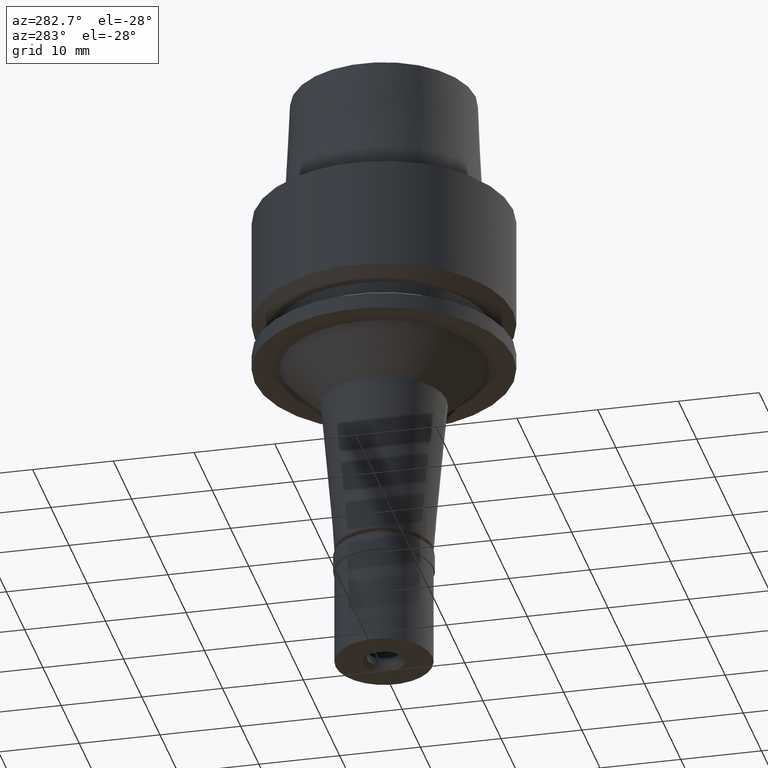
[diagram: clean part render]
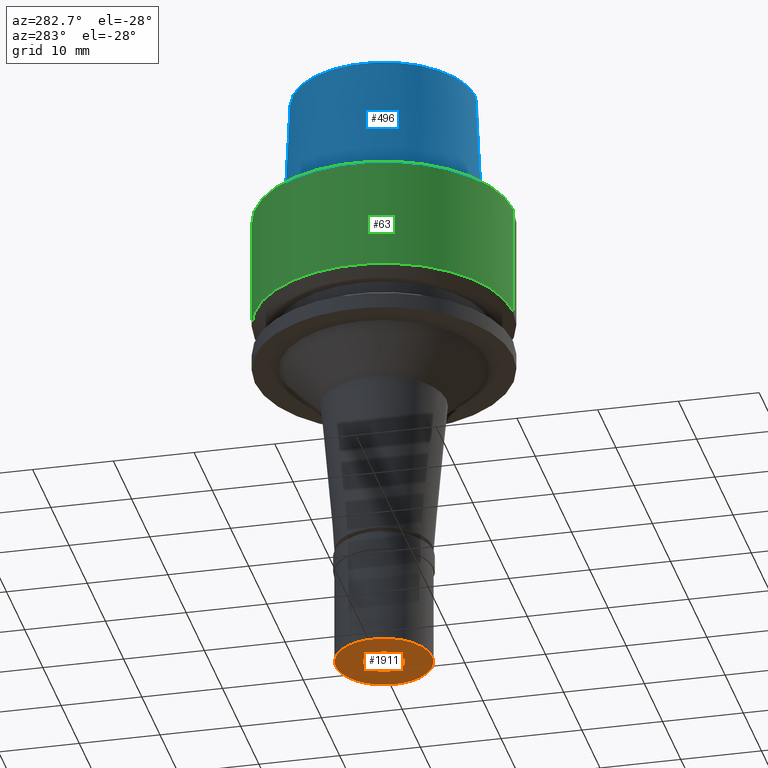
[diagram: same view with three faces highlighted in distinct colors, each labeled with its STEP entity id]
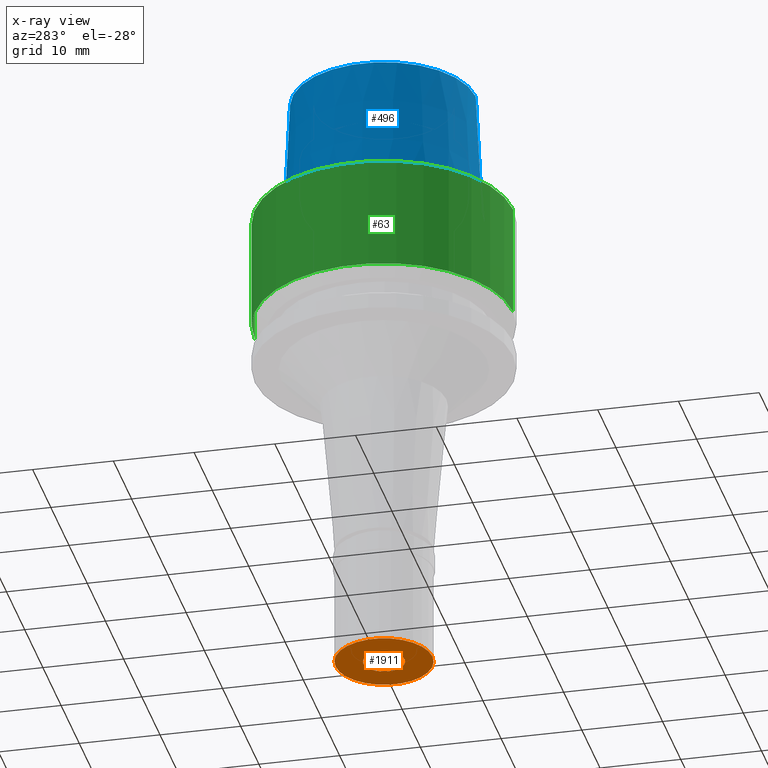
[diagram: x-ray of the same camera — body ghosted, the three highlighted faces saturated]
A machine part, auxiliary view with three faces highlighted in distinct colors.
The next image is the same camera in x-ray (body ghosted, the three faces saturated) — at least one of them is partly hidden behind the body in this view.
Their STEP definitions:

[orange] entity #1911 — the highlighted planar face has unit normal (0, 0, 1).
#25 = EDGE_CURVE ( 'NONE', #849, #1228, #1195, .T. ) ;
#37 = DIRECTION ( 'NONE',  ( 0.0000000000000000000, 0.0000000000000000000, -1.000000000000000000 ) ) ;
#49 = EDGE_CURVE ( 'NONE', #1881, #1268, #1945, .T. ) ;
#217 = EDGE_CURVE ( 'NONE', #1268, #1881, #2287, .T. ) ;
#439 = PLANE ( 'NONE',  #614 ) ;
#440 = DIRECTION ( 'NONE',  ( 0.0000000000000000000, 0.0000000000000000000, 1.000000000000000000 ) ) ;
#530 = DIRECTION ( 'NONE',  ( 0.0000000000000000000, 0.0000000000000000000, 1.000000000000000000 ) ) ;
#553 = ORIENTED_EDGE ( 'NONE', *, *, #25, .F. ) ;
#614 = AXIS2_PLACEMENT_3D ( 'NONE', #1480, #1010, #1241 ) ;
#705 = CARTESIAN_POINT ( 'NONE',  ( 0.0000000000000000000, 2.550000000000000266, -14.50000000000000000 ) ) ;
#762 = AXIS2_PLACEMENT_3D ( 'NONE', #1906, #440, #2129 ) ;
#833 = DIRECTION ( 'NONE',  ( 0.0000000000000000000, 0.0000000000000000000, -1.000000000000000000 ) ) ;
#849 = VERTEX_POINT ( 'NONE', #705 ) ;
#976 = CARTESIAN_POINT ( 'NONE',  ( 0.0000000000000000000, -2.550000000000000266, -14.50000000000000000 ) ) ;
#996 = ORIENTED_EDGE ( 'NONE', *, *, #49, .F. ) ;
#1010 = DIRECTION ( 'NONE',  ( 0.0000000000000000000, 0.0000000000000000000, 1.000000000000000000 ) ) ;
#1024 = EDGE_LOOP ( 'NONE', ( #1250, #996 ) ) ;
#1066 = AXIS2_PLACEMENT_3D ( 'NONE', #2317, #833, #2534 ) ;
#1195 = CIRCLE ( 'NONE', #1066, 2.550000000000000266 ) ;
#1228 = VERTEX_POINT ( 'NONE', #976 ) ;
#1241 = DIRECTION ( 'NONE',  ( 1.000000000000000000, 0.0000000000000000000, 0.0000000000000000000 ) ) ;
#1250 = ORIENTED_EDGE ( 'NONE', *, *, #217, .F. ) ;
#1267 = DIRECTION ( 'NONE',  ( 0.0000000000000000000, -1.000000000000000000, 0.0000000000000000000 ) ) ;
#1268 = VERTEX_POINT ( 'NONE', #1595 ) ;
#1438 = FACE_OUTER_BOUND ( 'NONE', #1024, .T. ) ;
#1480 = CARTESIAN_POINT ( 'NONE',  ( 0.0000000000000000000, 0.0000000000000000000, -14.50000000000000000 ) ) ;
#1595 = CARTESIAN_POINT ( 'NONE',  ( 0.0000000000000000000, 6.000000000000000000, -14.50000000000000000 ) ) ;
#1658 = CARTESIAN_POINT ( 'NONE',  ( 0.0000000000000000000, -6.000000000000000000, -14.50000000000000000 ) ) ;
#1881 = VERTEX_POINT ( 'NONE', #1658 ) ;
#1894 = EDGE_LOOP ( 'NONE', ( #553, #2467 ) ) ;
#1905 = FACE_BOUND ( 'NONE', #1894, .T. ) ;
#1906 = CARTESIAN_POINT ( 'NONE',  ( 0.0000000000000000000, 0.0000000000000000000, -14.50000000000000000 ) ) ;
#1911 = ADVANCED_FACE ( 'NONE', ( #1438, #1905 ), #439, .F. ) ;
#1945 = CIRCLE ( 'NONE', #762, 6.000000000000000000 ) ;
#2129 = DIRECTION ( 'NONE',  ( 0.0000000000000000000, -1.000000000000000000, 0.0000000000000000000 ) ) ;
#2146 = CARTESIAN_POINT ( 'NONE',  ( 0.0000000000000000000, 0.0000000000000000000, -14.50000000000000000 ) ) ;
#2191 = DIRECTION ( 'NONE',  ( 0.0000000000000000000, 1.000000000000000000, 0.0000000000000000000 ) ) ;
#2255 = CIRCLE ( 'NONE', #2606, 2.550000000000000266 ) ;
#2287 = CIRCLE ( 'NONE', #2589, 6.000000000000000000 ) ;
#2317 = CARTESIAN_POINT ( 'NONE',  ( 0.0000000000000000000, 0.0000000000000000000, -14.50000000000000000 ) ) ;
#2396 = CARTESIAN_POINT ( 'NONE',  ( 0.0000000000000000000, 0.0000000000000000000, -14.50000000000000000 ) ) ;
#2467 = ORIENTED_EDGE ( 'NONE', *, *, #2477, .F. ) ;
#2477 = EDGE_CURVE ( 'NONE', #1228, #849, #2255, .T. ) ;
#2534 = DIRECTION ( 'NONE',  ( 0.0000000000000000000, 1.000000000000000000, 0.0000000000000000000 ) ) ;
#2589 = AXIS2_PLACEMENT_3D ( 'NONE', #2396, #530, #2191 ) ;
#2606 = AXIS2_PLACEMENT_3D ( 'NONE', #2146, #37, #1267 ) ;

[blue] entity #496 — the highlighted conical surface has half-angle 2.862 deg.
#6 = ORIENTED_EDGE ( 'NONE', *, *, #516, .T. ) ;
#69 = CIRCLE ( 'NONE', #421, 11.36000117044999946 ) ;
#383 = CARTESIAN_POINT ( 'NONE',  ( 0.0000000000000000000, 12.15999970738999991, 3.907985046680999726E-14 ) ) ;
#421 = AXIS2_PLACEMENT_3D ( 'NONE', #968, #1809, #1157 ) ;
#447 = VERTEX_POINT ( 'NONE', #383 ) ;
#496 = ADVANCED_FACE ( 'NONE', ( #761 ), #547, .T. ) ;
#516 = EDGE_CURVE ( 'NONE', #1962, #1534, #69, .T. ) ;
#547 = CONICAL_SURFACE ( 'NONE', #2419, 11.76000043892000058, 0.04995830450907576964 ) ;
#580 = ORIENTED_EDGE ( 'NONE', *, *, #2649, .F. ) ;
#608 = CARTESIAN_POINT ( 'NONE',  ( 0.0000000000000000000, 11.36000117044000035, 16.00000000000000000 ) ) ;
#666 = EDGE_CURVE ( 'NONE', #1534, #447, #2280, .T. ) ;
#673 = VERTEX_POINT ( 'NONE', #1251 ) ;
#699 = DIRECTION ( 'NONE',  ( 0.0000000000000000000, -0.04993752584492938684, -0.9987523434327887362 ) ) ;
#761 = FACE_OUTER_BOUND ( 'NONE', #1278, .T. ) ;
#785 = DIRECTION ( 'NONE',  ( 0.0000000000000000000, 0.0000000000000000000, 1.000000000000000000 ) ) ;
#946 = ORIENTED_EDGE ( 'NONE', *, *, #666, .T. ) ;
#968 = CARTESIAN_POINT ( 'NONE',  ( 0.0000000000000000000, 0.0000000000000000000, 16.00000000000000000 ) ) ;
#1006 = CIRCLE ( 'NONE', #2266, 12.15999970738999991 ) ;
#1126 = VECTOR ( 'NONE', #699, 999.9999999999998863 ) ;
#1157 = DIRECTION ( 'NONE',  ( 0.0000000000000000000, -1.000000000000000000, 0.0000000000000000000 ) ) ;
#1251 = CARTESIAN_POINT ( 'NONE',  ( 0.0000000000000000000, -12.15999970738999991, 1.989519660127999812E-13 ) ) ;
#1278 = EDGE_LOOP ( 'NONE', ( #1973, #580, #6, #946 ) ) ;
#1452 = CARTESIAN_POINT ( 'NONE',  ( 0.0000000000000000000, -11.36000117044000035, 16.00000000000000000 ) ) ;
#1534 = VERTEX_POINT ( 'NONE', #1738 ) ;
#1695 = VECTOR ( 'NONE', #2501, 999.9999999999998863 ) ;
#1738 = CARTESIAN_POINT ( 'NONE',  ( 0.0000000000000000000, 11.36000117044000035, 16.00000000000000000 ) ) ;
#1793 = DIRECTION ( 'NONE',  ( 0.0000000000000000000, 0.0000000000000000000, -1.000000000000000000 ) ) ;
#1809 = DIRECTION ( 'NONE',  ( 0.0000000000000000000, 0.0000000000000000000, -1.000000000000000000 ) ) ;
#1962 = VERTEX_POINT ( 'NONE', #1452 ) ;
#1973 = ORIENTED_EDGE ( 'NONE', *, *, #2231, .T. ) ;
#2231 = EDGE_CURVE ( 'NONE', #447, #673, #1006, .T. ) ;
#2266 = AXIS2_PLACEMENT_3D ( 'NONE', #2640, #785, #2472 ) ;
#2280 = LINE ( 'NONE', #608, #1695 ) ;
#2360 = LINE ( 'NONE', #2576, #1126 ) ;
#2419 = AXIS2_PLACEMENT_3D ( 'NONE', #2437, #1793, #2668 ) ;
#2437 = CARTESIAN_POINT ( 'NONE',  ( 0.0000000000000000000, 0.0000000000000000000, 8.000000000000000000 ) ) ;
#2472 = DIRECTION ( 'NONE',  ( 0.0000000000000000000, 1.000000000000000000, 0.0000000000000000000 ) ) ;
#2501 = DIRECTION ( 'NONE',  ( 0.0000000000000000000, 0.04993752584492938684, -0.9987523434327887362 ) ) ;
#2576 = CARTESIAN_POINT ( 'NONE',  ( 0.0000000000000000000, -11.36000117044000035, 16.00000000000000000 ) ) ;
#2640 = CARTESIAN_POINT ( 'NONE',  ( 0.0000000000000000000, 0.0000000000000000000, 1.989519660127999812E-13 ) ) ;
#2649 = EDGE_CURVE ( 'NONE', #1962, #673, #2360, .T. ) ;
#2668 = DIRECTION ( 'NONE',  ( 0.0000000000000000000, -1.000000000000000000, 0.0000000000000000000 ) ) ;

[green] entity #63 — the highlighted cylindrical surface (partial cylindrical patch) has radius 16 mm, axis along (0, 0, -1).
#63 = ADVANCED_FACE ( 'NONE', ( #2107 ), #238, .T. ) ;
#70 = DIRECTION ( 'NONE',  ( 0.0000000000000000000, 6.772870976582999535E-14, -1.000000000000000000 ) ) ;
#223 = VERTEX_POINT ( 'NONE', #2178 ) ;
#238 = CYLINDRICAL_SURFACE ( 'NONE', #501, 16.00000000000000000 ) ;
#343 = DIRECTION ( 'NONE',  ( 0.0000000000000000000, 0.0000000000000000000, -1.000000000000000000 ) ) ;
#415 = VERTEX_POINT ( 'NONE', #954 ) ;
#428 = DIRECTION ( 'NONE',  ( 0.0000000000000000000, 0.0000000000000000000, -1.000000000000000000 ) ) ;
#501 = AXIS2_PLACEMENT_3D ( 'NONE', #2327, #428, #1465 ) ;
#597 = VECTOR ( 'NONE', #70, 1000.000000000000000 ) ;
#718 = DIRECTION ( 'NONE',  ( 0.0000000000000000000, 1.000000000000000000, 0.0000000000000000000 ) ) ;
#726 = EDGE_CURVE ( 'NONE', #415, #2356, #2099, .T. ) ;
#837 = ORIENTED_EDGE ( 'NONE', *, *, #2421, .T. ) ;
#914 = CIRCLE ( 'NONE', #2175, 16.00000000000000000 ) ;
#954 = CARTESIAN_POINT ( 'NONE',  ( 0.0000000000000000000, -16.00000000000000000, -1.776356839399999922E-14 ) ) ;
#1015 = CARTESIAN_POINT ( 'NONE',  ( 0.0000000000000000000, -16.00000000000000000, -1.184237892934000027E-14 ) ) ;
#1071 = CARTESIAN_POINT ( 'NONE',  ( 0.0000000000000000000, 16.00000000000000000, -1.184237892934000027E-14 ) ) ;
#1142 = CARTESIAN_POINT ( 'NONE',  ( 0.0000000000000000000, 0.0000000000000000000, -13.97927405783999966 ) ) ;
#1418 = CARTESIAN_POINT ( 'NONE',  ( 0.0000000000000000000, -16.00000000000000000, -13.97927405783999966 ) ) ;
#1465 = DIRECTION ( 'NONE',  ( 0.0000000000000000000, -1.000000000000000000, 0.0000000000000000000 ) ) ;
#1528 = CIRCLE ( 'NONE', #1966, 16.00000000000000000 ) ;
#1562 = VERTEX_POINT ( 'NONE', #1940 ) ;
#1577 = EDGE_CURVE ( 'NONE', #415, #1562, #914, .T. ) ;
#1697 = EDGE_CURVE ( 'NONE', #223, #2356, #1528, .T. ) ;
#1730 = ORIENTED_EDGE ( 'NONE', *, *, #726, .F. ) ;
#1778 = CARTESIAN_POINT ( 'NONE',  ( 0.0000000000000000000, 0.0000000000000000000, -1.776356839399999922E-14 ) ) ;
#1925 = DIRECTION ( 'NONE',  ( 0.0000000000000000000, -6.772870976582999535E-14, -1.000000000000000000 ) ) ;
#1936 = LINE ( 'NONE', #1071, #2559 ) ;
#1940 = CARTESIAN_POINT ( 'NONE',  ( 0.0000000000000000000, 16.00000000000000000, -1.184237892934000027E-14 ) ) ;
#1966 = AXIS2_PLACEMENT_3D ( 'NONE', #1142, #2584, #718 ) ;
#2099 = LINE ( 'NONE', #1015, #597 ) ;
#2107 = FACE_OUTER_BOUND ( 'NONE', #2550, .T. ) ;
#2175 = AXIS2_PLACEMENT_3D ( 'NONE', #1778, #343, #2176 ) ;
#2176 = DIRECTION ( 'NONE',  ( 0.0000000000000000000, -1.000000000000000000, 0.0000000000000000000 ) ) ;
#2178 = CARTESIAN_POINT ( 'NONE',  ( 0.0000000000000000000, 16.00000000000000000, -13.97927405783999966 ) ) ;
#2306 = ORIENTED_EDGE ( 'NONE', *, *, #1577, .T. ) ;
#2327 = CARTESIAN_POINT ( 'NONE',  ( 0.0000000000000000000, 0.0000000000000000000, 19.59999999999999787 ) ) ;
#2356 = VERTEX_POINT ( 'NONE', #1418 ) ;
#2421 = EDGE_CURVE ( 'NONE', #1562, #223, #1936, .T. ) ;
#2454 = ORIENTED_EDGE ( 'NONE', *, *, #1697, .T. ) ;
#2550 = EDGE_LOOP ( 'NONE', ( #2454, #1730, #2306, #837 ) ) ;
#2559 = VECTOR ( 'NONE', #1925, 1000.000000000000000 ) ;
#2584 = DIRECTION ( 'NONE',  ( 0.0000000000000000000, 0.0000000000000000000, 1.000000000000000000 ) ) ;